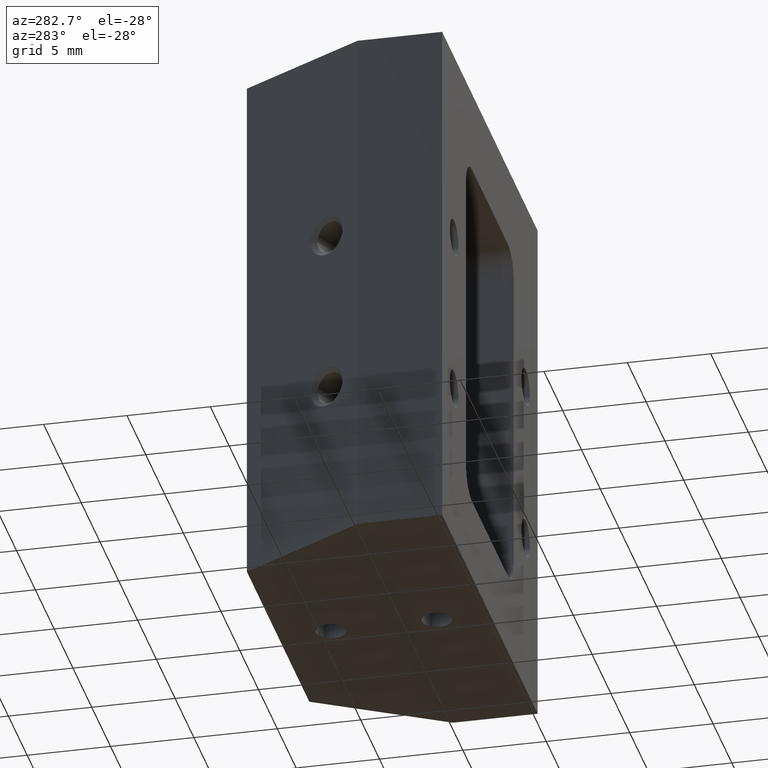
[diagram: clean part render]
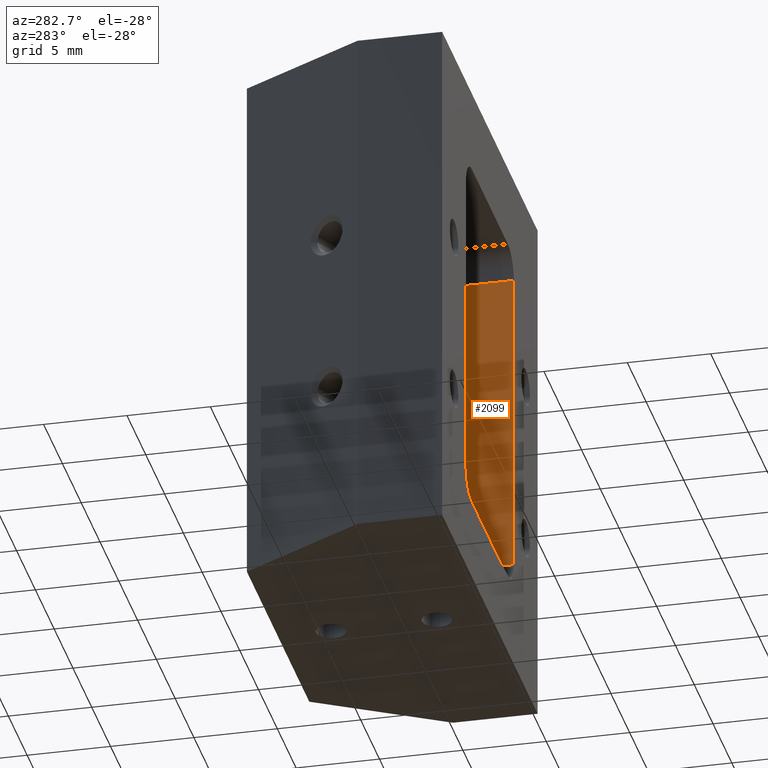
[diagram: same view with one face highlighted and labeled with its STEP entity id]
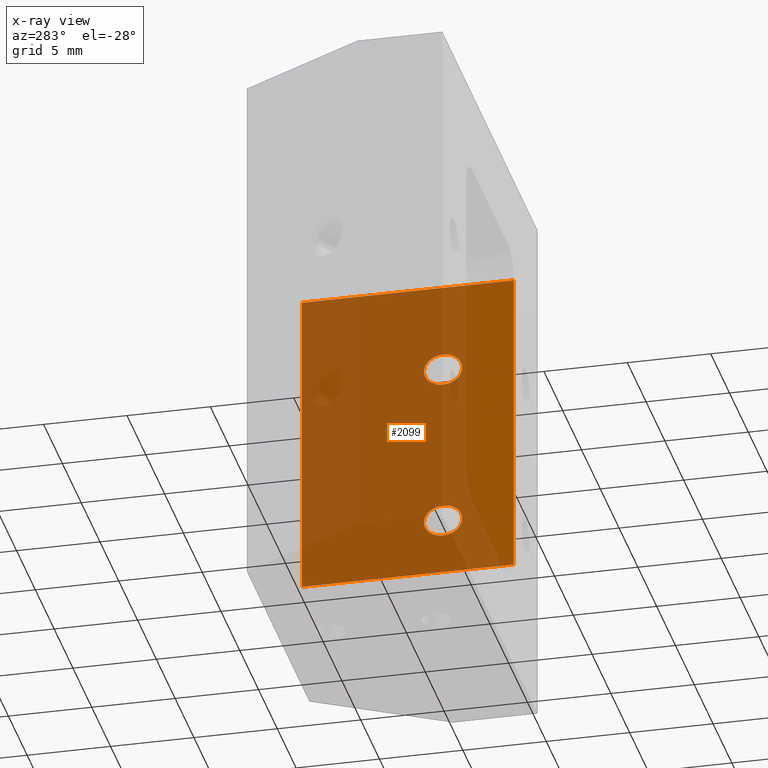
[diagram: x-ray of the same camera — body ghosted, the highlighted face saturated]
A machine part, auxiliary view. The second image highlights one B-rep face of the part: STEP entity #2099.
The next image is the same camera in x-ray: the body ghosted, the highlighted face saturated — about 79% of this face is hidden behind the body in this view.
In plain terms, the highlighted planar face has unit normal (1, 0, -0).
Its self-contained STEP definition (entity closure, byte-faithful):
#32 = EDGE_LOOP ( 'NONE', ( #1524, #1528 ) ) ;
#37 = EDGE_LOOP ( 'NONE', ( #1531, #1529 ) ) ;
#38 = EDGE_LOOP ( 'NONE', ( #1535, #1527, #1474, #1523 ) ) ;
#77 = VECTOR ( 'NONE', #366, 39.37007874015748100 ) ;
#78 = LINE ( 'NONE', #365, #77 ) ;
#99 = LINE ( 'NONE', #303, #101 ) ;
#101 = VECTOR ( 'NONE', #299, 39.37007874015748100 ) ;
#185 = DIRECTION ( 'NONE',  ( -2.365532012695646200E-016, 0.0000000000000000000, -1.000000000000000000 ) ) ;
#187 = PLANE ( 'NONE',  #1989 ) ;
#189 = CARTESIAN_POINT ( 'NONE',  ( 0.2500000000000000000, -1.365923996832131600E-016, 0.1968503937007874100 ) ) ;
#213 = DIRECTION ( 'NONE',  ( 1.000000000000000000, 0.0000000000000000000, -2.365532012695646200E-016 ) ) ;
#299 = DIRECTION ( 'NONE',  ( -2.365532012695646200E-016, -0.0000000000000000000, -1.000000000000000000 ) ) ;
#303 = CARTESIAN_POINT ( 'NONE',  ( 0.2500000000000000000, 0.4999999999999998300, 0.1968503937007874100 ) ) ;
#341 = CARTESIAN_POINT ( 'NONE',  ( 0.2500000000000001100, 0.2120783541314905900, 0.4718007874015745500 ) ) ;
#348 = CARTESIAN_POINT ( 'NONE',  ( 0.2500000000000001100, 0.1218962420840712400, 0.4718007874015745500 ) ) ;
#355 = CARTESIAN_POINT ( 'NONE',  ( 0.2500000000000002200, 0.1218962420840712800, 0.8655015748031494900 ) ) ;
#356 = CARTESIAN_POINT ( 'NONE',  ( 0.2500000000000000600, 0.2120783541314906200, 0.3937007874015746600 ) ) ;
#358 = CARTESIAN_POINT ( 'NONE',  ( 0.2500000000000000600, 0.1218962420840712100, 0.3937007874015746600 ) ) ;
#359 = CARTESIAN_POINT ( 'NONE',  ( 0.2500000000000000000, -1.530808498934191600E-016, 0.2593503937007873800 ) ) ;
#360 = CARTESIAN_POINT ( 'NONE',  ( 0.2500000000000002200, 0.2120783541314906800, 0.8655015748031494900 ) ) ;
#361 = CARTESIAN_POINT ( 'NONE',  ( 0.2500000000000001100, 0.2120783541314907000, 0.7874015748031495400 ) ) ;
#362 = CARTESIAN_POINT ( 'NONE',  ( 0.2500000000000001100, 0.1218962420840712700, 0.7874015748031495400 ) ) ;
#363 = DIRECTION ( 'NONE',  ( -0.0000000000000000000, -1.000000000000000000, -0.0000000000000000000 ) ) ;
#365 = CARTESIAN_POINT ( 'NONE',  ( 0.2500000000000002200, 0.4999999999999998300, 1.000492125984252100 ) ) ;
#366 = DIRECTION ( 'NONE',  ( 0.0000000000000000000, 1.000000000000000000, 0.0000000000000000000 ) ) ;
#476 = CARTESIAN_POINT ( 'NONE',  ( 0.2500000000000001100, 0.1218962420840712700, 0.7874015748031495400 ) ) ;
#477 = CARTESIAN_POINT ( 'NONE',  ( 0.2500000000000001100, 0.1218962420840712400, 0.7093015748031495900 ) ) ;
#483 = CARTESIAN_POINT ( 'NONE',  ( 0.2500000000000001100, 0.2120783541314906800, 0.7093015748031495900 ) ) ;
#484 = CARTESIAN_POINT ( 'NONE',  ( 0.2500000000000001100, 0.2120783541314907000, 0.7874015748031495400 ) ) ;
#598 = CARTESIAN_POINT ( 'NONE',  ( 0.2500000000000000000, -1.365923996832131600E-016, 0.1968503937007874100 ) ) ;
#599 = DIRECTION ( 'NONE',  ( -2.365532012695646200E-016, -0.0000000000000000000, -1.000000000000000000 ) ) ;
#816 = CARTESIAN_POINT ( 'NONE',  ( 0.2500000000000000600, 0.1218962420840712100, 0.3937007874015746600 ) ) ;
#817 = CARTESIAN_POINT ( 'NONE',  ( 0.2500000000000000000, 0.1218962420840712200, 0.3156007874015748200 ) ) ;
#822 = CARTESIAN_POINT ( 'NONE',  ( 0.2500000000000000000, 0.2120783541314905900, 0.3156007874015748200 ) ) ;
#823 = CARTESIAN_POINT ( 'NONE',  ( 0.2500000000000000600, 0.2120783541314906200, 0.3937007874015746600 ) ) ;
#843 = CARTESIAN_POINT ( 'NONE',  ( 0.2500000000000000600, 0.1218962420840712100, 0.3937007874015746600 ) ) ;
#847 = CARTESIAN_POINT ( 'NONE',  ( 0.2500000000000002200, 0.4999999999999998300, 1.000492125984252100 ) ) ;
#880 = CARTESIAN_POINT ( 'NONE',  ( 0.2500000000000001100, 0.2120783541314907000, 0.7874015748031495400 ) ) ;
#887 = CARTESIAN_POINT ( 'NONE',  ( 0.2500000000000000600, 0.2120783541314906200, 0.3937007874015746600 ) ) ;
#888 = CARTESIAN_POINT ( 'NONE',  ( 0.2500000000000001100, 0.1218962420840712700, 0.7874015748031495400 ) ) ;
#915 = CARTESIAN_POINT ( 'NONE',  ( 0.2500000000000000000, -1.365923996832131600E-016, 0.2593503937007873800 ) ) ;
#937 = CARTESIAN_POINT ( 'NONE',  ( 0.2500000000000000000, 0.4999999999999998300, 0.2593503937007873800 ) ) ;
#939 = CARTESIAN_POINT ( 'NONE',  ( 0.2500000000000002200, -1.365923996832131600E-016, 1.000492125984252100 ) ) ;
#1051 = EDGE_CURVE ( 'NONE', #1347, #1512, #99, .T. ) ;
#1071 = EDGE_CURVE ( 'NONE', #1451, #1258, #2068, .T. ) ;
#1072 = EDGE_CURVE ( 'NONE', #1443, #1452, #2070, .T. ) ;
#1073 = EDGE_CURVE ( 'NONE', #1512, #1480, #1130, .T. ) ;
#1074 = EDGE_CURVE ( 'NONE', #1514, #1347, #78, .T. ) ;
#1101 = EDGE_CURVE ( 'NONE', #1452, #1443, #2060, .T. ) ;
#1129 = VECTOR ( 'NONE', #363, 39.37007874015748100 ) ;
#1130 = LINE ( 'NONE', #359, #1129 ) ;
#1145 = EDGE_CURVE ( 'NONE', #1514, #1480, #1722, .T. ) ;
#1193 = EDGE_CURVE ( 'NONE', #1258, #1451, #2041, .T. ) ;
#1258 = VERTEX_POINT ( 'NONE', #843 ) ;
#1347 = VERTEX_POINT ( 'NONE', #847 ) ;
#1443 = VERTEX_POINT ( 'NONE', #880 ) ;
#1451 = VERTEX_POINT ( 'NONE', #887 ) ;
#1452 = VERTEX_POINT ( 'NONE', #888 ) ;
#1474 = ORIENTED_EDGE ( 'NONE', *, *, #1145, .F. ) ;
#1480 = VERTEX_POINT ( 'NONE', #915 ) ;
#1512 = VERTEX_POINT ( 'NONE', #937 ) ;
#1514 = VERTEX_POINT ( 'NONE', #939 ) ;
#1523 = ORIENTED_EDGE ( 'NONE', *, *, #1074, .T. ) ;
#1524 = ORIENTED_EDGE ( 'NONE', *, *, #1071, .T. ) ;
#1527 = ORIENTED_EDGE ( 'NONE', *, *, #1073, .T. ) ;
#1528 = ORIENTED_EDGE ( 'NONE', *, *, #1193, .T. ) ;
#1529 = ORIENTED_EDGE ( 'NONE', *, *, #1101, .T. ) ;
#1531 = ORIENTED_EDGE ( 'NONE', *, *, #1072, .T. ) ;
#1535 = ORIENTED_EDGE ( 'NONE', *, *, #1051, .T. ) ;
#1722 = LINE ( 'NONE', #598, #1724 ) ;
#1724 = VECTOR ( 'NONE', #599, 39.37007874015748100 ) ;
#1850 = FACE_OUTER_BOUND ( 'NONE', #38, .T. ) ;
#1851 = FACE_BOUND ( 'NONE', #32, .T. ) ;
#1854 = FACE_BOUND ( 'NONE', #37, .T. ) ;
#1989 = AXIS2_PLACEMENT_3D ( 'NONE', #189, #213, #185 ) ;
#2041 =( BOUNDED_CURVE ( )  B_SPLINE_CURVE ( 3, ( #816, #817, #822, #823 ),
 .UNSPECIFIED., .F., .F. ) 
 B_SPLINE_CURVE_WITH_KNOTS ( ( 4, 4 ),
 ( 3.141592653589792700, 6.283185307179585300 ),
 .UNSPECIFIED. ) 
 CURVE ( )  GEOMETRIC_REPRESENTATION_ITEM ( )  RATIONAL_B_SPLINE_CURVE ( ( 1.000000000000000000, 0.3333333333333335400, 0.3333333333333335400, 1.000000000000000000 ) ) 
 REPRESENTATION_ITEM ( '' )  );
#2060 =( BOUNDED_CURVE ( )  B_SPLINE_CURVE ( 3, ( #476, #477, #483, #484 ),
 .UNSPECIFIED., .F., .F. ) 
 B_SPLINE_CURVE_WITH_KNOTS ( ( 4, 4 ),
 ( 3.141592653589792700, 6.283185307179585300 ),
 .UNSPECIFIED. ) 
 CURVE ( )  GEOMETRIC_REPRESENTATION_ITEM ( )  RATIONAL_B_SPLINE_CURVE ( ( 1.000000000000000000, 0.3333333333333335400, 0.3333333333333335400, 1.000000000000000000 ) ) 
 REPRESENTATION_ITEM ( '' )  );
#2068 =( BOUNDED_CURVE ( )  B_SPLINE_CURVE ( 3, ( #356, #341, #348, #358 ),
 .UNSPECIFIED., .F., .F. ) 
 B_SPLINE_CURVE_WITH_KNOTS ( ( 4, 4 ),
 ( 0.0000000000000000000, 3.141592653589792700 ),
 .UNSPECIFIED. ) 
 CURVE ( )  GEOMETRIC_REPRESENTATION_ITEM ( )  RATIONAL_B_SPLINE_CURVE ( ( 1.000000000000000000, 0.3333333333333335400, 0.3333333333333335400, 1.000000000000000000 ) ) 
 REPRESENTATION_ITEM ( '' )  );
#2070 =( BOUNDED_CURVE ( )  B_SPLINE_CURVE ( 3, ( #361, #360, #355, #362 ),
 .UNSPECIFIED., .F., .F. ) 
 B_SPLINE_CURVE_WITH_KNOTS ( ( 4, 4 ),
 ( 0.0000000000000000000, 3.141592653589792700 ),
 .UNSPECIFIED. ) 
 CURVE ( )  GEOMETRIC_REPRESENTATION_ITEM ( )  RATIONAL_B_SPLINE_CURVE ( ( 1.000000000000000000, 0.3333333333333335400, 0.3333333333333335400, 1.000000000000000000 ) ) 
 REPRESENTATION_ITEM ( '' )  );
#2099 = ADVANCED_FACE ( 'NONE', ( #1851, #1854, #1850 ), #187, .F. ) ;